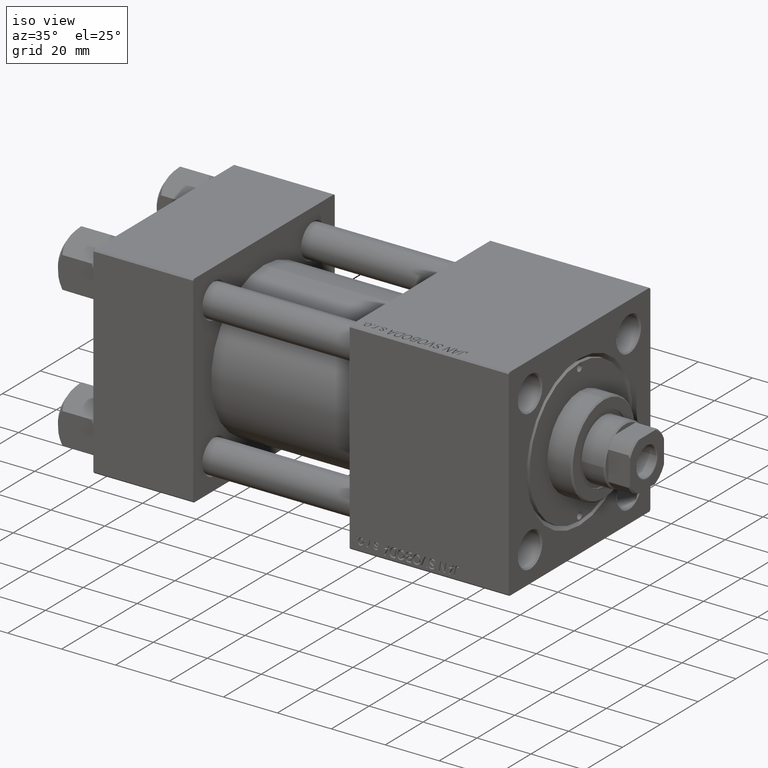
[diagram: clean part render]
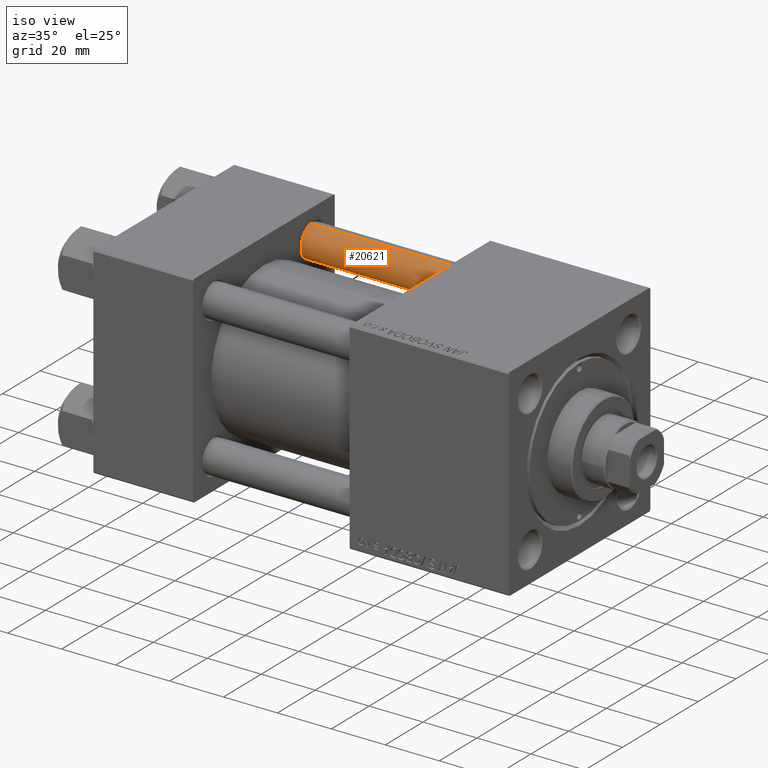
[diagram: same view with one face highlighted and labeled with its STEP entity id]
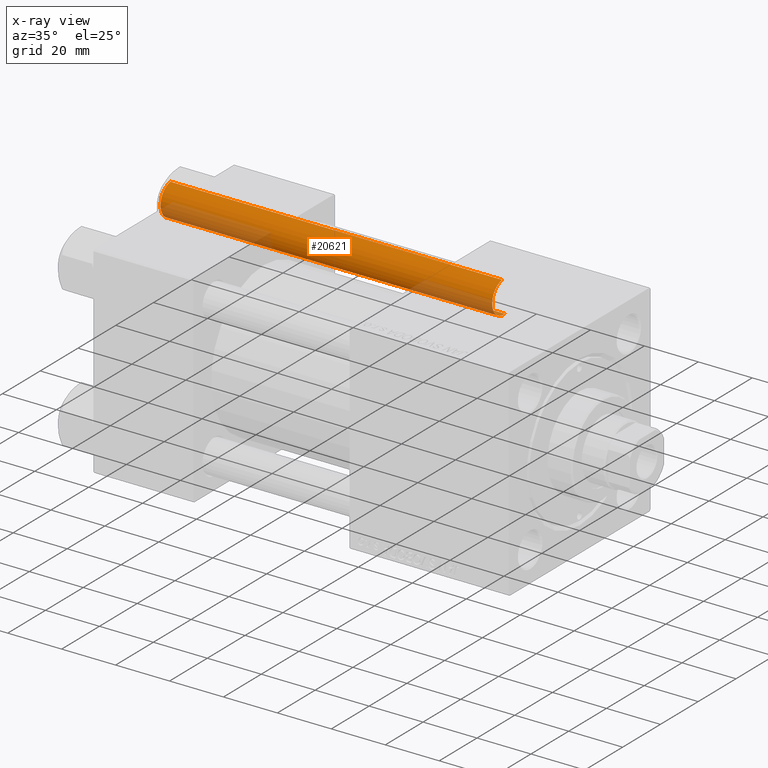
[diagram: x-ray of the same camera — body ghosted, the highlighted face saturated]
A machine part, iso view. The second image highlights one B-rep face of the part: STEP entity #20621.
The next image is the same camera in x-ray: the body ghosted, the highlighted face saturated — about 24% of this face is hidden behind the body in this view.
In plain terms, the highlighted cylindrical surface (edge-blend (fillet) strip) has radius 6 mm, axis along (-1, 0, 0).
Its self-contained STEP definition (entity closure, byte-faithful):
#719 = VECTOR ( 'NONE', #14653, 1000.000000000000000 ) ;
#4104 = DIRECTION ( 'NONE',  ( -1.000000000000000000, 0.000000000000000000, 0.000000000000000000 ) ) ;
#6446 = EDGE_CURVE ( 'NONE', #48799, #45836, #22835, .T. ) ;
#8442 = FACE_OUTER_BOUND ( 'NONE', #46083, .T. ) ;
#8852 = AXIS2_PLACEMENT_3D ( 'NONE', #46606, #35635, #4104 ) ;
#10517 = DIRECTION ( 'NONE',  ( 0.000000000000000000, 0.000000000000000000, -1.000000000000000000 ) ) ;
#12047 = VERTEX_POINT ( 'NONE', #42514 ) ;
#12148 = DIRECTION ( 'NONE',  ( -0.000000000000000000, -0.000000000000000000, 1.000000000000000000 ) ) ;
#12492 = VERTEX_POINT ( 'NONE', #25163 ) ;
#14574 = DIRECTION ( 'NONE',  ( 1.000000000000000000, 0.000000000000000000, 0.000000000000000000 ) ) ;
#14653 = DIRECTION ( 'NONE',  ( -0.000000000000000000, -0.000000000000000000, -1.000000000000000000 ) ) ;
#17229 = CYLINDRICAL_SURFACE ( 'NONE', #8852, 6.000000000000000888 ) ;
#19979 = CARTESIAN_POINT ( 'NONE',  ( 6.000000000000000888, 7.347880794884120722E-16, 123.5000000000000426 ) ) ;
#20621 = ADVANCED_FACE ( 'NONE', ( #8442 ), #17229, .T. ) ;
#20677 = EDGE_CURVE ( 'NONE', #48799, #12492, #25620, .T. ) ;
#20977 = CARTESIAN_POINT ( 'NONE',  ( -6.000000000000000888, 0.000000000000000000, 124.0000000000000000 ) ) ;
#21039 = DIRECTION ( 'NONE',  ( 1.000000000000000000, 0.000000000000000000, 0.000000000000000000 ) ) ;
#22835 = CIRCLE ( 'NONE', #23639, 6.000000000000000888 ) ;
#23639 = AXIS2_PLACEMENT_3D ( 'NONE', #37983, #10517, #14574 ) ;
#24659 = ORIENTED_EDGE ( 'NONE', *, *, #35788, .T. ) ;
#24797 = DIRECTION ( 'NONE',  ( -0.000000000000000000, -0.000000000000000000, -1.000000000000000000 ) ) ;
#25163 = CARTESIAN_POINT ( 'NONE',  ( 6.000000000000000888, 7.347880794884120722E-16, 0.4999999999999865663 ) ) ;
#25620 = LINE ( 'NONE', #37042, #719 ) ;
#25939 = ORIENTED_EDGE ( 'NONE', *, *, #46938, .T. ) ;
#27938 = CARTESIAN_POINT ( 'NONE',  ( 0.000000000000000000, 0.000000000000000000, 0.4999999999999865663 ) ) ;
#35635 = DIRECTION ( 'NONE',  ( -0.000000000000000000, -0.000000000000000000, -1.000000000000000000 ) ) ;
#35788 = EDGE_CURVE ( 'NONE', #45836, #12047, #36219, .T. ) ;
#36219 = LINE ( 'NONE', #20977, #44936 ) ;
#37042 = CARTESIAN_POINT ( 'NONE',  ( 6.000000000000000888, 7.347880794884120722E-16, 124.0000000000000000 ) ) ;
#37983 = CARTESIAN_POINT ( 'NONE',  ( 0.000000000000000000, 0.000000000000000000, 123.5000000000000426 ) ) ;
#42514 = CARTESIAN_POINT ( 'NONE',  ( -6.000000000000000888, 0.000000000000000000, 0.4999999999999865663 ) ) ;
#44245 = CARTESIAN_POINT ( 'NONE',  ( -6.000000000000000888, 0.000000000000000000, 123.5000000000000426 ) ) ;
#44936 = VECTOR ( 'NONE', #24797, 1000.000000000000000 ) ;
#45588 = AXIS2_PLACEMENT_3D ( 'NONE', #27938, #12148, #21039 ) ;
#45836 = VERTEX_POINT ( 'NONE', #44245 ) ;
#46083 = EDGE_LOOP ( 'NONE', ( #48671, #46265, #24659, #25939 ) ) ;
#46265 = ORIENTED_EDGE ( 'NONE', *, *, #6446, .T. ) ;
#46606 = CARTESIAN_POINT ( 'NONE',  ( 0.000000000000000000, 0.000000000000000000, 124.0000000000000000 ) ) ;
#46938 = EDGE_CURVE ( 'NONE', #12047, #12492, #47210, .T. ) ;
#47210 = CIRCLE ( 'NONE', #45588, 6.000000000000000888 ) ;
#48671 = ORIENTED_EDGE ( 'NONE', *, *, #20677, .F. ) ;
#48799 = VERTEX_POINT ( 'NONE', #19979 ) ;